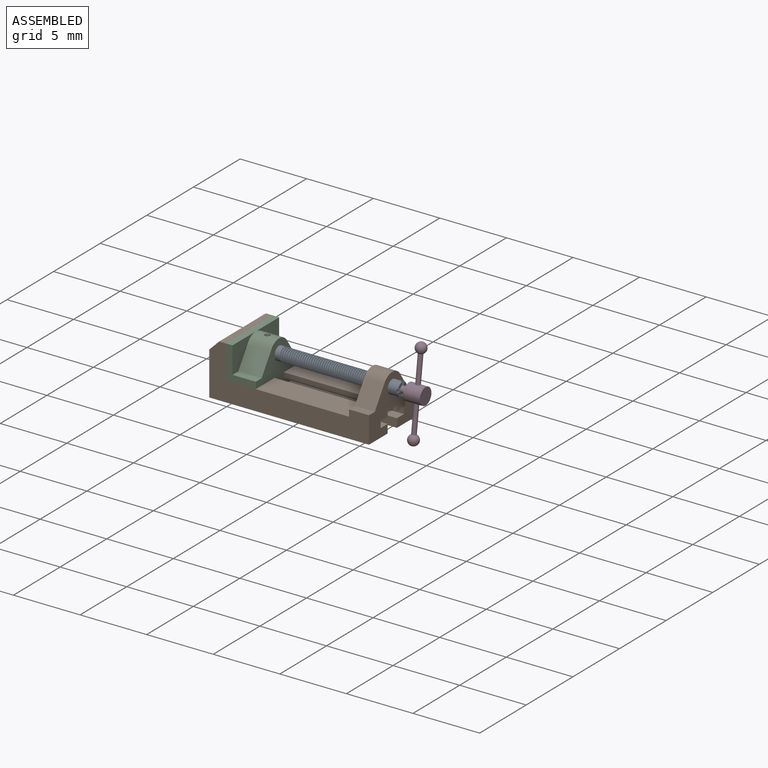
[diagram: assembled view]
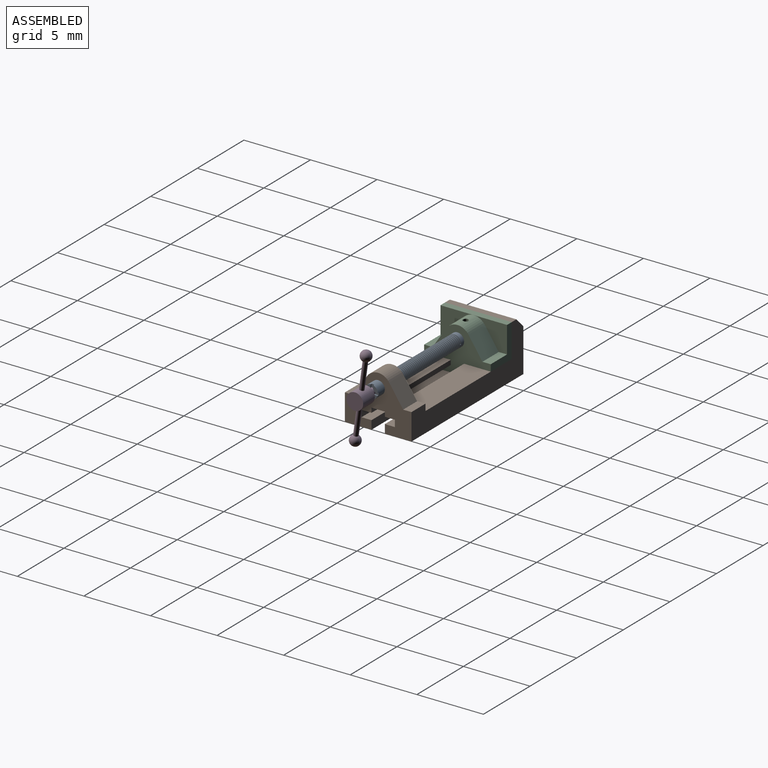
[diagram: assembled view, second angle]
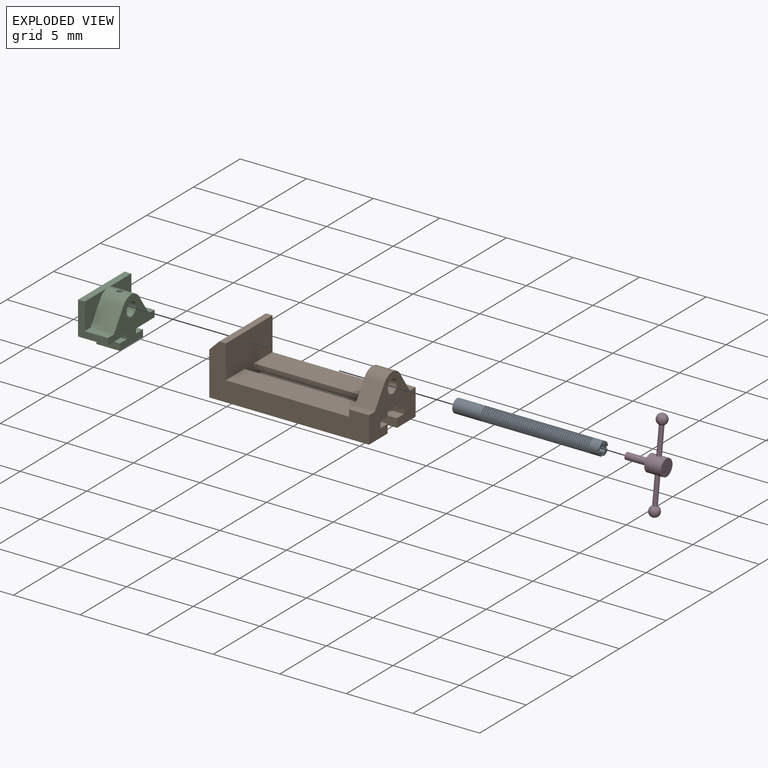
[diagram: exploded view]
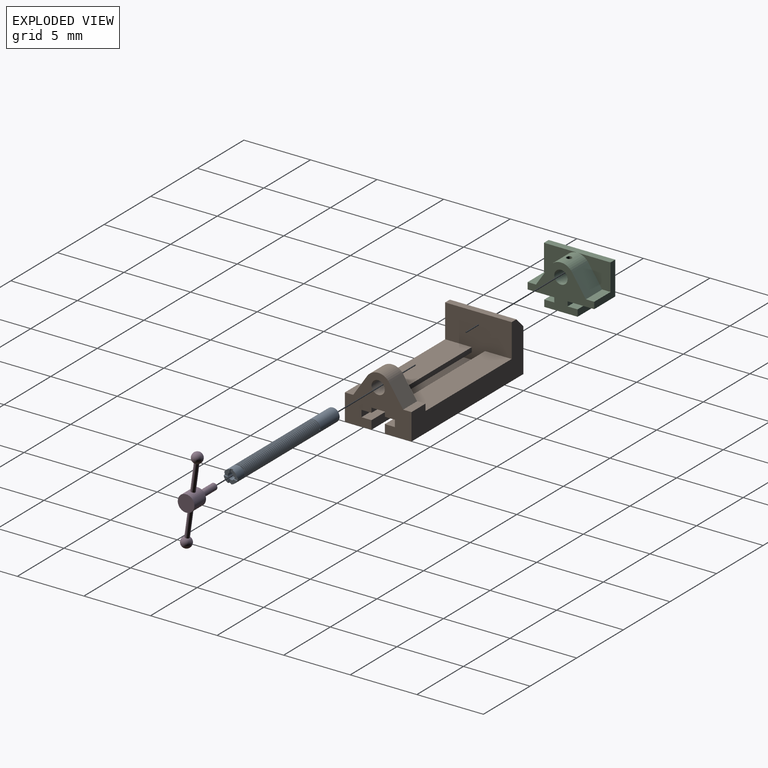
[diagram: exploded view, second angle]
ASSEMBLY  parts=4 mates=3
PART A: 74 faces, bbox 11x1x1.2 mm
  f0: cylinder r=0.5mm len=1mm, axis (-1,0,0), area 2.4mm2, adj f1,f52,f53,f55,f57,f58,f59,f60
  f1: cylinder r=0.5mm len=1mm, axis (-1,0,0), area 0.2mm2, adj f0,f2,f52,f53
  f2: cylinder r=0.5mm len=1mm, axis (-1,0,0), area 0.2mm2, adj f1,f3,f52,f53
  f3: cylinder r=0.5mm len=1mm, axis (-1,0,0), area 0.2mm2, adj f2,f4,f52,f53
  f4: cylinder r=0.5mm len=1mm, axis (-1,0,0), area 0.2mm2, adj f3,f5,f52,f53
  f5: cylinder r=0.5mm len=1mm, axis (-1,0,0), area 0.2mm2, adj f4,f6,f52,f53
  f6: cylinder r=0.5mm len=1mm, axis (-1,0,0), area 0.2mm2, adj f5,f7,f52,f53
  f7: cylinder r=0.5mm len=1mm, axis (-1,0,0), area 0.2mm2, adj f6,f8,f52,f53
  f8: cylinder r=0.5mm len=1mm, axis (-1,0,0), area 0.2mm2, adj f7,f9,f52,f53
  f9: cylinder r=0.5mm len=1mm, axis (-1,0,0), area 0.2mm2, adj f8,f10,f52,f53
  f10: cylinder r=0.5mm len=1mm, axis (-1,0,0), area 0.2mm2, adj f9,f11,f52,f53
  f11: cylinder r=0.5mm len=1mm, axis (-1,0,0), area 0.2mm2, adj f10,f12,f52,f53
  f12: cylinder r=0.5mm len=1mm, axis (-1,0,0), area 0.2mm2, adj f11,f13,f52,f53
  f13: cylinder r=0.5mm len=1mm, axis (-1,0,0), area 0.2mm2, adj f12,f14,f52,f53
  f14: cylinder r=0.5mm len=1mm, axis (-1,0,0), area 0.2mm2, adj f13,f15,f52,f53
  f15: cylinder r=0.5mm len=1mm, axis (-1,0,0), area 0.2mm2, adj f14,f16,f52,f53
  f16: cylinder r=0.5mm len=1mm, axis (-1,0,0), area 0.2mm2, adj f15,f17,f52,f53
  f17: cylinder r=0.5mm len=1mm, axis (-1,0,0), area 0.2mm2, adj f16,f18,f52,f53
  f18: cylinder r=0.5mm len=1mm, axis (-1,0,0), area 0.2mm2, adj f17,f19,f52,f53
  f19: cylinder r=0.5mm len=1mm, axis (-1,0,0), area 0.2mm2, adj f18,f20,f52,f53
  f20: cylinder r=0.5mm len=1mm, axis (-1,0,0), area 0.2mm2, adj f19,f21,f52,f53
  f21: cylinder r=0.5mm len=1mm, axis (-1,0,0), area 0.2mm2, adj f20,f22,f52,f53
  f22: cylinder r=0.5mm len=1mm, axis (-1,0,0), area 0.2mm2, adj f21,f23,f52,f53
  f23: cylinder r=0.5mm len=1mm, axis (-1,0,0), area 0.2mm2, adj f22,f24,f52,f53
  f24: cylinder r=0.5mm len=1mm, axis (-1,0,0), area 0.2mm2, adj f23,f25,f52,f53
  f25: cylinder r=0.5mm len=1mm, axis (-1,0,0), area 0.2mm2, adj f24,f26,f52,f53
  f26: cylinder r=0.5mm len=1mm, axis (-1,0,0), area 0.2mm2, adj f25,f27,f52,f53
  f27: cylinder r=0.5mm len=1mm, axis (-1,0,0), area 0.2mm2, adj f26,f28,f52,f53
  f28: cylinder r=0.5mm len=1mm, axis (-1,0,0), area 0.2mm2, adj f27,f29,f52,f53
  f29: cylinder r=0.5mm len=1mm, axis (-1,0,0), area 0.2mm2, adj f28,f30,f52,f53
  f30: cylinder r=0.5mm len=1mm, axis (-1,0,0), area 0.2mm2, adj f29,f31,f52,f53
  f31: cylinder r=0.5mm len=1mm, axis (-1,0,0), area 0.2mm2, adj f30,f32,f52,f53
  f32: cylinder r=0.5mm len=1mm, axis (-1,0,0), area 0.2mm2, adj f31,f33,f52,f53
  f33: cylinder r=0.5mm len=1mm, axis (-1,0,0), area 0.2mm2, adj f32,f34,f52,f53
  f34: cylinder r=0.5mm len=1mm, axis (-1,0,0), area 0.2mm2, adj f33,f35,f52,f53
  f35: cylinder r=0.5mm len=1mm, axis (-1,0,0), area 0.2mm2, adj f34,f36,f52,f53
  f36: cylinder r=0.5mm len=1mm, axis (-1,0,0), area 0.2mm2, adj f35,f37,f52,f53
  f37: cylinder r=0.5mm len=1mm, axis (-1,0,0), area 0.2mm2, adj f36,f38,f52,f53
  f38: cylinder r=0.5mm len=1mm, axis (-1,0,0), area 0.2mm2, adj f37,f39,f52,f53
  f39: cylinder r=0.5mm len=1mm, axis (-1,0,0), area 0.2mm2, adj f38,f40,f52,f53
  f40: cylinder r=0.5mm len=1mm, axis (-1,0,0), area 0.2mm2, adj f39,f41,f52,f53
  f41: cylinder r=0.5mm len=1mm, axis (-1,0,0), area 0.2mm2, adj f40,f42,f52,f53
  f42: cylinder r=0.5mm len=1mm, axis (-1,0,0), area 0.2mm2, adj f41,f43,f52,f53
  f43: cylinder r=0.5mm len=1mm, axis (-1,0,0), area 0.2mm2, adj f42,f44,f52,f53
  f44: cylinder r=0.5mm len=1mm, axis (-1,0,0), area 0.2mm2, adj f43,f45,f52,f53
  f45: cylinder r=0.5mm len=1mm, axis (-1,0,0), area 0.2mm2, adj f44,f46,f52,f53
  f46: cylinder r=0.5mm len=1mm, axis (-1,0,0), area 0.2mm2, adj f45,f47,f52,f53
  f47: cylinder r=0.5mm len=1mm, axis (-1,0,0), area 0.2mm2, adj f46,f48,f52,f53
  f48: cylinder r=0.5mm len=1mm, axis (-1,0,0), area 0.2mm2, adj f47,f49,f52,f53
  f49: cylinder r=0.5mm len=2.36mm, axis (-1,0,0), area 6.9mm2, adj f48,f50,f52,f53,f54
  f50: plane 0.1x0.1mm, normal (0,0,-1), area 0mm2, adj f49,f51,f52,f53
  f51: cylinder r=0.4mm len=8.16mm, axis (1,0,0), area 9.2mm2, adj f50,f52,f53,f55
  f52: bspline ~8.16x1.15mm, area 14.4mm2, adj f0,f1,f2,f3,f4,f5,f6,f7
  f53: bspline ~8.21x1.15mm, area 14.6mm2, adj f0,f1,f2,f3,f4,f5,f6,f7
  f54: plane 1x1mm, normal (-1,0,0), area 0.8mm2, adj f49
  f55: plane 1.03x0.85mm, normal (-1,0,0), area 0.1mm2, adj f0,f51,f52,f53
  f56: cylinder r=0.25mm len=0.75mm, axis (-1,0,0), area 1.1mm2, adj f57,f58,f59,f60,f61,f62,f63,f64
  f57: plane 0.26x0.1mm, normal (0,0,-1), area 0mm2, adj f0,f56,f59,f70
  f58: plane 0.26x0.1mm, normal (0,-1,0), area 0mm2, adj f0,f56,f59,f72
  f59: plane 0.39x0.39mm, normal (1,0,0), area 0.1mm2, adj f0,f56,f57,f58
  f60: plane 0.26x0.1mm, normal (0,0,-1), area 0mm2, adj f0,f56,f62,f71
  f61: plane 0.26x0.1mm, normal (0,1,0), area 0mm2, adj f0,f56,f62,f72
  f62: plane 0.39x0.39mm, normal (1,0,0), area 0.1mm2, adj f0,f56,f60,f61
  f63: plane 0.26x0.1mm, normal (0,0,1), area 0mm2, adj f0,f56,f65,f71
  f64: plane 0.26x0.1mm, normal (0,1,0), area 0mm2, adj f0,f56,f65,f69
  f65: plane 0.39x0.39mm, normal (1,0,0), area 0.1mm2, adj f0,f56,f63,f64
  f66: plane 0.26x0.1mm, normal (0,-1,0), area 0mm2, adj f0,f56,f68,f69
  f67: plane 0.26x0.1mm, normal (0,0,1), area 0mm2, adj f0,f56,f68,f70
  f68: plane 0.39x0.39mm, normal (1,0,0), area 0.1mm2, adj f0,f56,f66,f67
  f69: plane 0.27x0.2mm, normal (1,0,0), area 0.1mm2, adj f0,f56,f64,f66
  f70: plane 0.27x0.2mm, normal (1,0,0), area 0.1mm2, adj f0,f56,f57,f67
  f71: plane 0.27x0.2mm, normal (1,0,0), area 0.1mm2, adj f0,f56,f60,f63
  f72: plane 0.27x0.2mm, normal (1,0,0), area 0.1mm2, adj f0,f56,f58,f61
  f73: plane 0.5x0.5mm, normal (1,0,0), area 0.2mm2, adj f56
PART B: 28 faces, bbox 12x5x4 mm
  f0: plane 12x5mm, normal (0,0,-1), area 49.2mm2, adj f1,f7,f9,f10,f22,f24,f26
  f1: plane 10.75x0.65mm, normal (0,1,0), area 7mm2, adj f0,f2,f22,f24
  f2: plane 10.75x0.75mm, normal (0,0,1), area 8.1mm2, adj f1,f3,f22,f24
  f3: plane 10.75x0.5mm, normal (0,1,0), area 5.4mm2, adj f2,f4,f22,f24
  f4: plane 10.75x0.75mm, normal (0,0,-1), area 8.1mm2, adj f3,f5,f22,f24
  f5: plane 10.75x0.35mm, normal (0,1,0), area 3.8mm2, adj f4,f6,f15,f22,f24
  f6: plane 9.25x2mm, normal (0,0,1), area 18.5mm2, adj f5,f7,f23,f24
  f7: plane 12x4mm, normal (0,-1,0), area 21.6mm2, adj f0,f6,f21,f22,f23,f24,f25,f26
  f8: plane 10.75x0.75mm, normal (0,0,1), area 8.1mm2, adj f9,f14,f22,f24
  f9: plane 10.75x0.65mm, normal (0,-1,0), area 7mm2, adj f0,f8,f22,f24
  f10: plane 12x4mm, normal (0,1,0), area 21.6mm2, adj f0,f11,f16,f22,f23,f24,f25,f26
  f11: plane 9.25x2mm, normal (0,0,1), area 18.5mm2, adj f10,f12,f23,f24
  f12: plane 10.75x0.35mm, normal (0,-1,0), area 3.8mm2, adj f11,f13,f15,f22,f24
  f13: plane 10.75x0.75mm, normal (0,0,-1), area 8.1mm2, adj f12,f14,f22,f24
  f14: plane 10.75x0.5mm, normal (0,-1,0), area 5.4mm2, adj f8,f13,f22,f24
  f15: plane 1.5x1mm, normal (0,0,-1), area 1.5mm2, adj f5,f12,f22,f23
  f16: plane 1.5x0.63mm, normal (0,0,1), area 0.9mm2, adj f10,f17,f22,f23
  f17: plane 1.56x1.5mm, normal (0,0.83,0.56), area 2.8mm2, adj f16,f18,f22,f23
  f18: cylinder r=1mm len=1.66mm, axis (-1,0,0), area 2.9mm2, adj f17,f19,f22,f23
  f19: plane 1.56x1.5mm, normal (0,-0.83,0.56), area 2.8mm2, adj f18,f21,f22,f23
  f20: cylinder r=0.5mm len=1.5mm, axis (-1,0,0), area 4.7mm2, adj f22,f23
  f21: plane 1.5x0.63mm, normal (0,0,1), area 0.9mm2, adj f7,f19,f22,f23
  f22: plane 5x4mm, normal (1,0,0), area 11.7mm2, adj f0,f1,f2,f3,f4,f5,f7,f8
  f23: plane 5x2.5mm, normal (-1,0,0), area 6.4mm2, adj f6,f7,f10,f11,f15,f16,f17,f18
  f24: plane 5x4mm, normal (1,0,0), area 14.7mm2, adj f0,f1,f2,f3,f4,f5,f6,f7
  f25: plane 5x0.5mm, normal (0,0,1), area 2.5mm2, adj f7,f10,f24,f27
  f26: plane 5x3.25mm, normal (-1,0,0), area 16.2mm2, adj f0,f7,f10,f27
  f27: plane 5x0.75mm, normal (-0.71,0,0.71), area 5.3mm2, adj f7,f10,f25,f26
PART C: 24 faces, bbox 5x2.3x3.4 mm
  f0: cylinder r=1mm len=1.75mm, axis (0,1,0), area 3.3mm2, adj f4,f5,f17,f20,f21,f23
  f1: plane 2.5x0.85mm, normal (0,1,0), area 1.6mm2, adj f8,f9,f10,f11,f12,f13,f14,f16
  f2: plane 2.5x2.25mm, normal (1,0,0), area 2.1mm2, adj f3,f8,f17,f18,f19,f20
  f3: plane 1.75x0.63mm, normal (0,0,1), area 1.1mm2, adj f2,f4,f17,f20
  f4: plane 1.75x1.56mm, normal (0.83,0,0.56), area 3.3mm2, adj f0,f3,f17,f20
  f5: plane 1.75x1.56mm, normal (-0.83,0,0.56), area 3.3mm2, adj f0,f6,f17,f21
  f6: plane 1.75x0.63mm, normal (0,0,1), area 1.1mm2, adj f5,f7,f17,f21
  f7: plane 2.5x2.25mm, normal (-1,0,0), area 2.1mm2, adj f6,f8,f17,f18,f19,f21
  f8: plane 5x2.25mm, normal (0,0,-1), area 9.5mm2, adj f1,f2,f7,f9,f16,f17,f18
  f9: plane 1.75x0.35mm, normal (-1,0,0), area 0.6mm2, adj f1,f8,f10,f17
  f10: plane 1.75x0.75mm, normal (0,0,1), area 1.3mm2, adj f1,f9,f11,f17
  f11: plane 1.75x0.5mm, normal (-1,0,0), area 0.9mm2, adj f1,f10,f12,f17
  f12: plane 2.5x1.75mm, normal (0,0,-1), area 4.4mm2, adj f1,f11,f13,f17
  f13: plane 1.75x0.5mm, normal (1,0,0), area 0.9mm2, adj f1,f12,f14,f17
  f14: plane 1.75x0.75mm, normal (0,0,1), area 1.3mm2, adj f1,f13,f16,f17
  f15: cylinder r=0.5mm len=1.75mm, axis (0,1,0), area 5.4mm2, adj f17,f22,f23
  f16: plane 1.75x0.35mm, normal (1,0,0), area 0.6mm2, adj f1,f8,f14,f17
  f17: plane 5x3.35mm, normal (0,-1,0), area 8mm2, adj f0,f2,f3,f4,f5,f6,f7,f8
  f18: plane 5x2.5mm, normal (0,1,0), area 12.5mm2, adj f2,f7,f8,f19
  f19: plane 5x0.5mm, normal (0,0,1), area 2.5mm2, adj f2,f7,f18,f20,f21
  f20: plane 2.5x2mm, normal (0,-1,0), area 2.6mm2, adj f0,f2,f3,f4,f19
  f21: plane 2.5x2mm, normal (0,-1,0), area 2.6mm2, adj f0,f5,f6,f7,f19
  f22: plane 1x1mm, normal (0,-1,0), area 0.8mm2, adj f15
  f23: cylinder r=0.2mm len=0.54mm, axis (0,0,1), area 0.6mm2, adj f0,f15
PART D: 9 faces, bbox 6.8x1.3x3 mm
  f0: cylinder r=0.17mm len=2.04mm, axis (-1,0,0), area 2.2mm2, adj f1,f2
  f1: sphere r=0.4mm, area 1.9mm2, adj f0
  f2: cylinder r=0.62mm len=1.25mm, axis (0,0,1), area 4.7mm2, adj f0,f3,f4,f6
  f3: plane 1.25x1.25mm, normal (0,0,-1), area 1mm2, adj f2,f7
  f4: plane 1.25x1.25mm, normal (0,0,1), area 1.2mm2, adj f2
  f5: sphere r=0.4mm, area 1.9mm2, adj f6
  f6: cylinder r=0.17mm len=2.04mm, axis (-1,0,0), area 2.2mm2, adj f2,f5
  f7: cylinder r=0.25mm len=1.75mm, axis (0,0,1), area 2.7mm2, adj f3,f8
  f8: plane 0.5x0.5mm, normal (0,0,-1), area 0.2mm2, adj f7
PLACE A rot(axis=(1,0,0),172.2deg) t=(-2.06,1.88,1.99)mm
PLACE B t=(0,-0.62,-1.01)mm fixed
PLACE C rot(axis=(0,0,1),90deg) t=(-4.13,1.88,1.99)mm
PLACE D rot(axis=(-0.07,1,-0.07),90.3deg) t=(8,1.88,1.99)mm
MATE slider B.f24 <-> C.f18  axis (-1,0,0) through (-4.62,-0.62,0.49)mm
MATE fastened D.f2 <-> A.f0  axis (1,0,0) through (6.5,1.88,1.99)mm
MATE revolute C.f0 <-> A.f0  axis (-1,0,0) through (-4.13,1.88,1.99)mm
